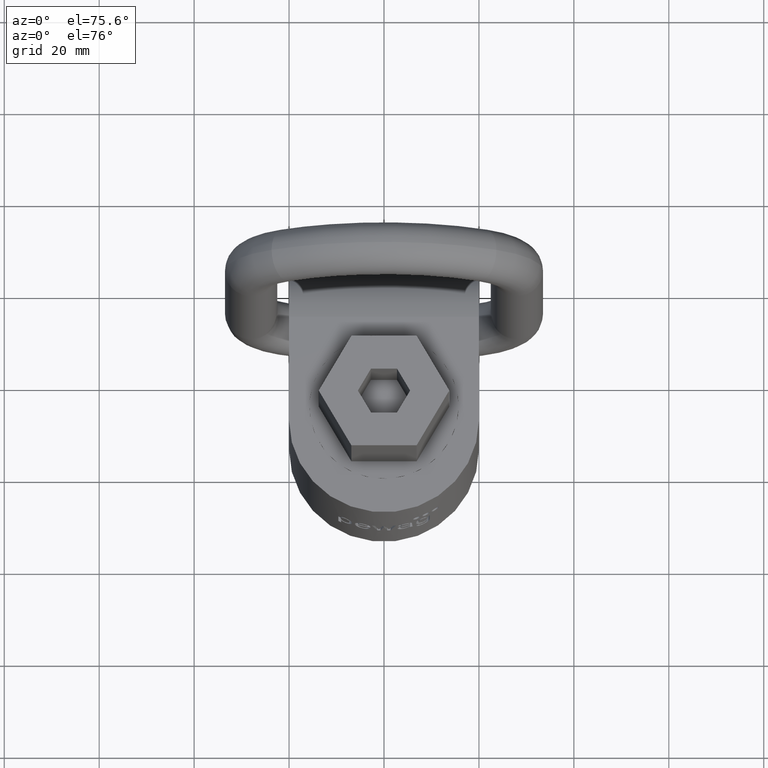
[diagram: clean part render]
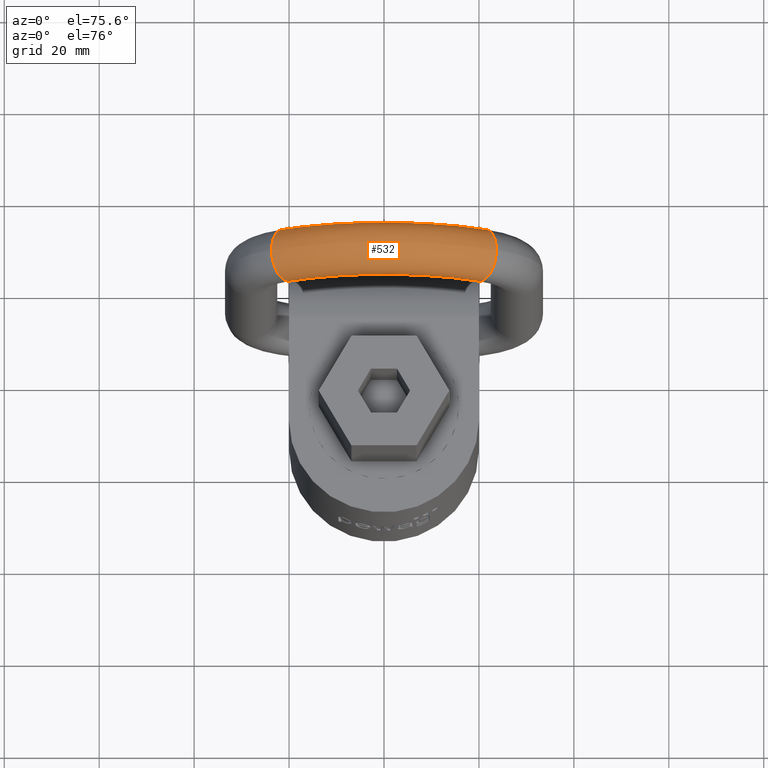
[diagram: same view with one face highlighted and labeled with its STEP entity id]
A machine part, auxiliary view. The second image highlights one B-rep face of the part: STEP entity #532.
In plain terms, the highlighted toroidal blend (fillet) surface has major radius 39 mm and minor (blend) radius 5.5 mm.
Its self-contained STEP definition (entity closure, byte-faithful):
#242=TOROIDAL_SURFACE('',#2546,39.,5.5);
#532=ADVANCED_FACE('',(#619,#620),#242,.T.);
#619=FACE_BOUND('',#781,.T.);
#620=FACE_BOUND('',#782,.T.);
#781=EDGE_LOOP('',(#1722));
#782=EDGE_LOOP('',(#1723));
#1117=CIRCLE('',#2543,5.5);
#1118=CIRCLE('',#2545,5.5);
#1722=ORIENTED_EDGE('',*,*,#2240,.T.);
#1723=ORIENTED_EDGE('',*,*,#2239,.F.);
#1935=VERTEX_POINT('',#5193);
#1936=VERTEX_POINT('',#5196);
#2239=EDGE_CURVE('',#1935,#1935,#1117,.T.);
#2240=EDGE_CURVE('',#1936,#1936,#1118,.T.);
#2543=AXIS2_PLACEMENT_3D('',#5192,#2975,#2976);
#2545=AXIS2_PLACEMENT_3D('',#5195,#2979,#2980);
#2546=AXIS2_PLACEMENT_3D('',#5197,#2981,#2982);
#2975=DIRECTION('',(-0.846797818814144,0.,-0.531914893617022));
#2976=DIRECTION('',(-0.531914893617021,0.,0.846797818814146));
#2979=DIRECTION('',(-0.846797818814145,0.,0.531914893617021));
#2980=DIRECTION('',(0.531914893617021,0.,0.846797818814146));
#2981=DIRECTION('',(0.,-1.,0.));
#2982=DIRECTION('',(0.,0.,-1.));
#5192=CARTESIAN_POINT('',(-20.7446808510639,19.,79.0251149337516));
#5193=CARTESIAN_POINT('',(-23.6702127659575,19.,83.6825029372294));
#5195=CARTESIAN_POINT('',(20.7446808510638,19.,79.0251149337516));
#5196=CARTESIAN_POINT('',(23.6702127659575,19.,83.6825029372294));
#5197=CARTESIAN_POINT('',(0.,19.,46.));